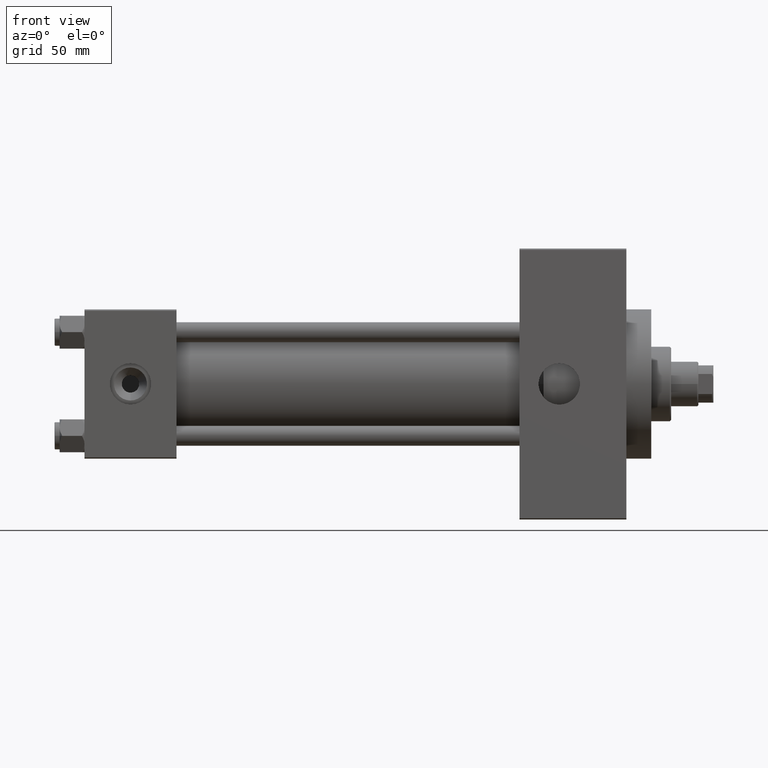
[diagram: clean part render]
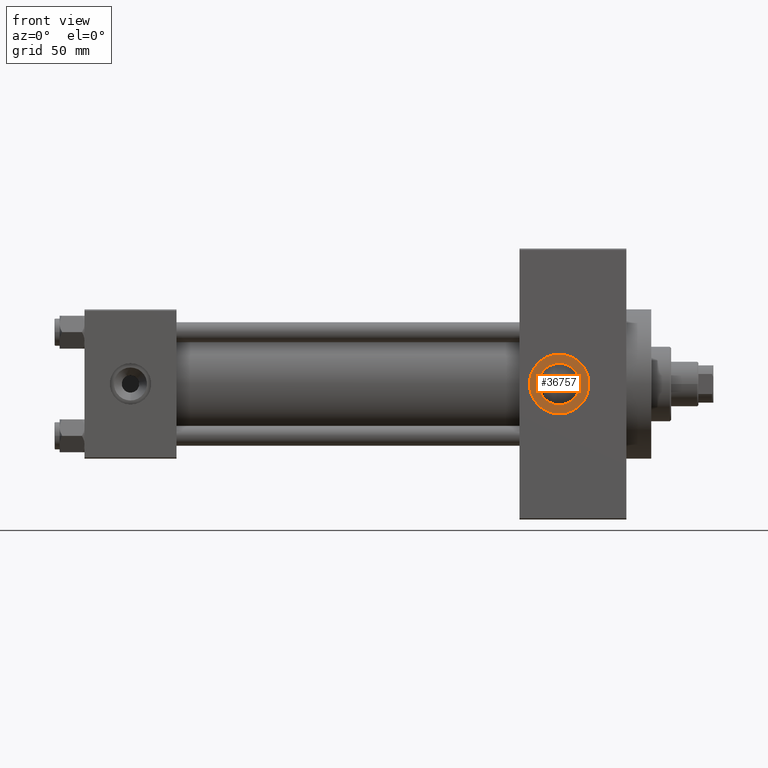
[diagram: same view with one face highlighted and labeled with its STEP entity id]
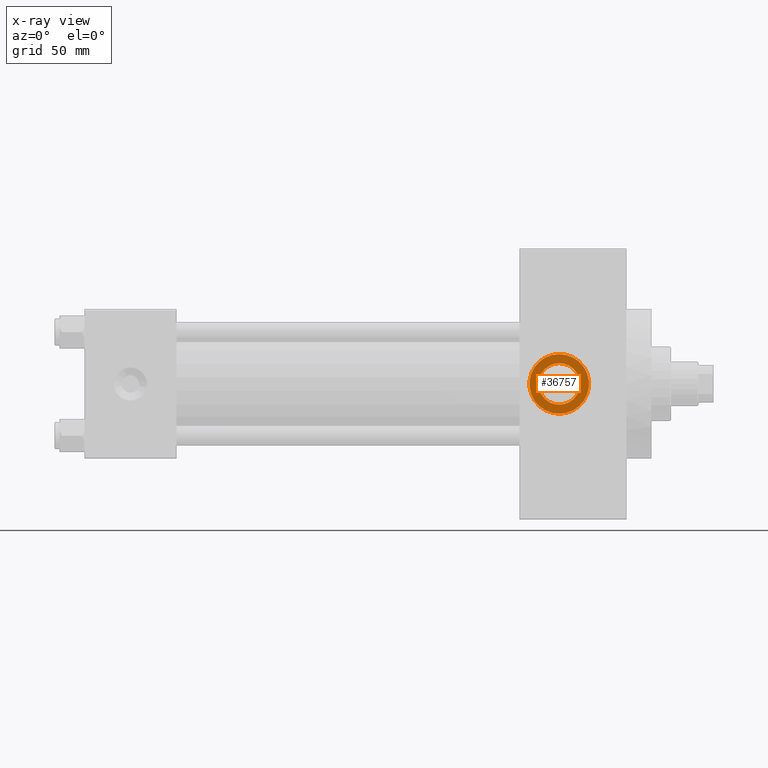
[diagram: x-ray of the same camera — body ghosted, the highlighted face saturated]
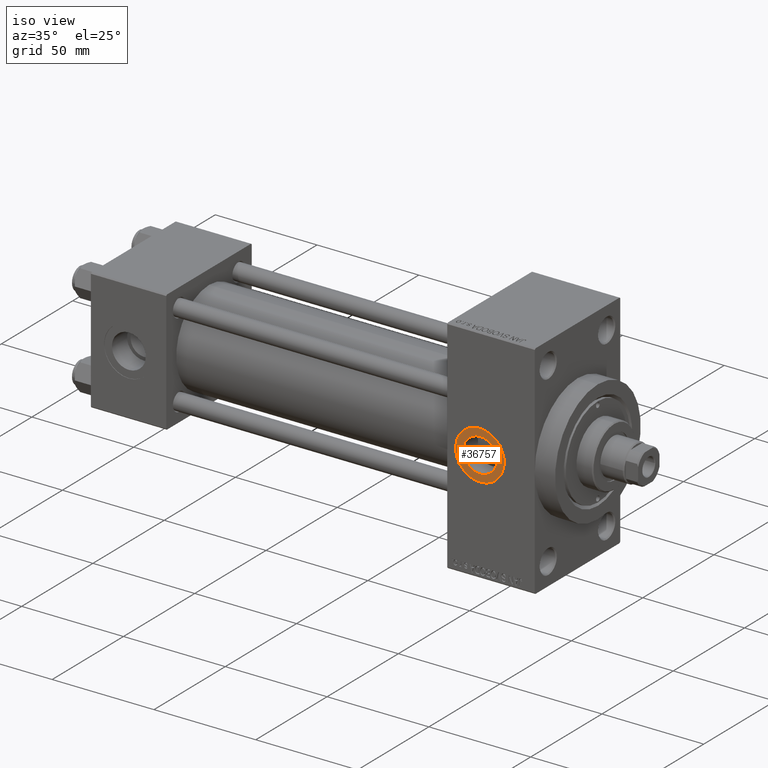
[diagram: same view with one face highlighted and labeled with its STEP entity id]
A machine part, front view. The second image highlights one B-rep face of the part: STEP entity #36757.
The next image is the same camera in x-ray: the body ghosted, the highlighted face saturated — about 0% of this face is hidden behind the body in this view.
A second angle (iso view) of the same face is appended — the face is thin or edge-on in the first view.
In plain terms, the highlighted planar face has unit normal (0, -1, -0).
Its self-contained STEP definition (entity closure, byte-faithful):
#1413 = EDGE_CURVE ( 'NONE', #20223, #4492, #20558, .T. ) ;
#2337 = EDGE_CURVE ( 'NONE', #19492, #22360, #26046, .T. ) ;
#2641 = ORIENTED_EDGE ( 'NONE', *, *, #38014, .F. ) ;
#4492 = VERTEX_POINT ( 'NONE', #28836 ) ;
#4785 = DIRECTION ( 'NONE',  ( 0.000000000000000000, -1.000000000000000000, -8.673617379884036705E-17 ) ) ;
#5097 = FACE_BOUND ( 'NONE', #38157, .T. ) ;
#5342 = DIRECTION ( 'NONE',  ( 0.000000000000000000, 8.673617379884036705E-17, -1.000000000000000000 ) ) ;
#5878 = ORIENTED_EDGE ( 'NONE', *, *, #1413, .F. ) ;
#8593 = AXIS2_PLACEMENT_3D ( 'NONE', #9114, #20126, #5342 ) ;
#9114 = CARTESIAN_POINT ( 'NONE',  ( 191.0000000000000000, -29.80000000000000071, 1.734723475976807403E-17 ) ) ;
#9830 = DIRECTION ( 'NONE',  ( 0.000000000000000000, -1.000000000000000000, -8.673617379884036705E-17 ) ) ;
#13599 = CARTESIAN_POINT ( 'NONE',  ( 191.0000000000000000, -29.80000000000000071, 1.734723475976807403E-17 ) ) ;
#16915 = AXIS2_PLACEMENT_3D ( 'NONE', #17056, #4785, #35341 ) ;
#17056 = CARTESIAN_POINT ( 'NONE',  ( 191.0000000000000000, -29.80000000000000071, 1.734723475976807403E-17 ) ) ;
#17382 = AXIS2_PLACEMENT_3D ( 'NONE', #47210, #20939, #28690 ) ;
#18069 = ORIENTED_EDGE ( 'NONE', *, *, #19004, .T. ) ;
#19004 = EDGE_CURVE ( 'NONE', #22360, #19492, #41645, .T. ) ;
#19492 = VERTEX_POINT ( 'NONE', #48982 ) ;
#20126 = DIRECTION ( 'NONE',  ( 0.000000000000000000, -1.000000000000000000, -8.673617379884036705E-17 ) ) ;
#20223 = VERTEX_POINT ( 'NONE', #47672 ) ;
#20512 = CIRCLE ( 'NONE', #38909, 8.329999999999998295 ) ;
#20558 = CIRCLE ( 'NONE', #17382, 8.329999999999998295 ) ;
#20939 = DIRECTION ( 'NONE',  ( 0.000000000000000000, -1.000000000000000000, -8.673617379884036705E-17 ) ) ;
#21032 = CARTESIAN_POINT ( 'NONE',  ( 191.0000000000000000, -29.80000000000000071, -12.00000000000000533 ) ) ;
#22360 = VERTEX_POINT ( 'NONE', #21032 ) ;
#23438 = ORIENTED_EDGE ( 'NONE', *, *, #2337, .T. ) ;
#23618 = EDGE_LOOP ( 'NONE', ( #18069, #23438 ) ) ;
#26046 = CIRCLE ( 'NONE', #26869, 12.00000000000000533 ) ;
#26776 = CARTESIAN_POINT ( 'NONE',  ( 191.0000000000000000, -29.80000000000000071, 1.734723475976808635E-17 ) ) ;
#26869 = AXIS2_PLACEMENT_3D ( 'NONE', #13599, #9830, #29345 ) ;
#28690 = DIRECTION ( 'NONE',  ( 0.000000000000000000, 0.000000000000000000, -1.000000000000000000 ) ) ;
#28836 = CARTESIAN_POINT ( 'NONE',  ( 191.0000000000000000, -29.80000000000000071, -8.329999999999998295 ) ) ;
#29345 = DIRECTION ( 'NONE',  ( 0.000000000000000000, 0.000000000000000000, -1.000000000000000000 ) ) ;
#34557 = DIRECTION ( 'NONE',  ( 0.000000000000000000, -1.000000000000000000, -8.673617379884036705E-17 ) ) ;
#35341 = DIRECTION ( 'NONE',  ( 0.000000000000000000, 0.000000000000000000, -1.000000000000000000 ) ) ;
#36757 = ADVANCED_FACE ( 'NONE', ( #5097, #39653 ), #43147, .T. ) ;
#38014 = EDGE_CURVE ( 'NONE', #4492, #20223, #20512, .T. ) ;
#38157 = EDGE_LOOP ( 'NONE', ( #2641, #5878 ) ) ;
#38909 = AXIS2_PLACEMENT_3D ( 'NONE', #26776, #34557, #46041 ) ;
#39653 = FACE_OUTER_BOUND ( 'NONE', #23618, .T. ) ;
#41645 = CIRCLE ( 'NONE', #16915, 12.00000000000000533 ) ;
#43147 = PLANE ( 'NONE',  #8593 ) ;
#46041 = DIRECTION ( 'NONE',  ( 0.000000000000000000, 0.000000000000000000, -1.000000000000000000 ) ) ;
#47210 = CARTESIAN_POINT ( 'NONE',  ( 191.0000000000000000, -29.80000000000000071, 1.734723475976808635E-17 ) ) ;
#47672 = CARTESIAN_POINT ( 'NONE',  ( 191.0000000000000000, -29.80000000000000071, 8.329999999999998295 ) ) ;
#48982 = CARTESIAN_POINT ( 'NONE',  ( 191.0000000000000000, -29.80000000000000071, 12.00000000000000533 ) ) ;